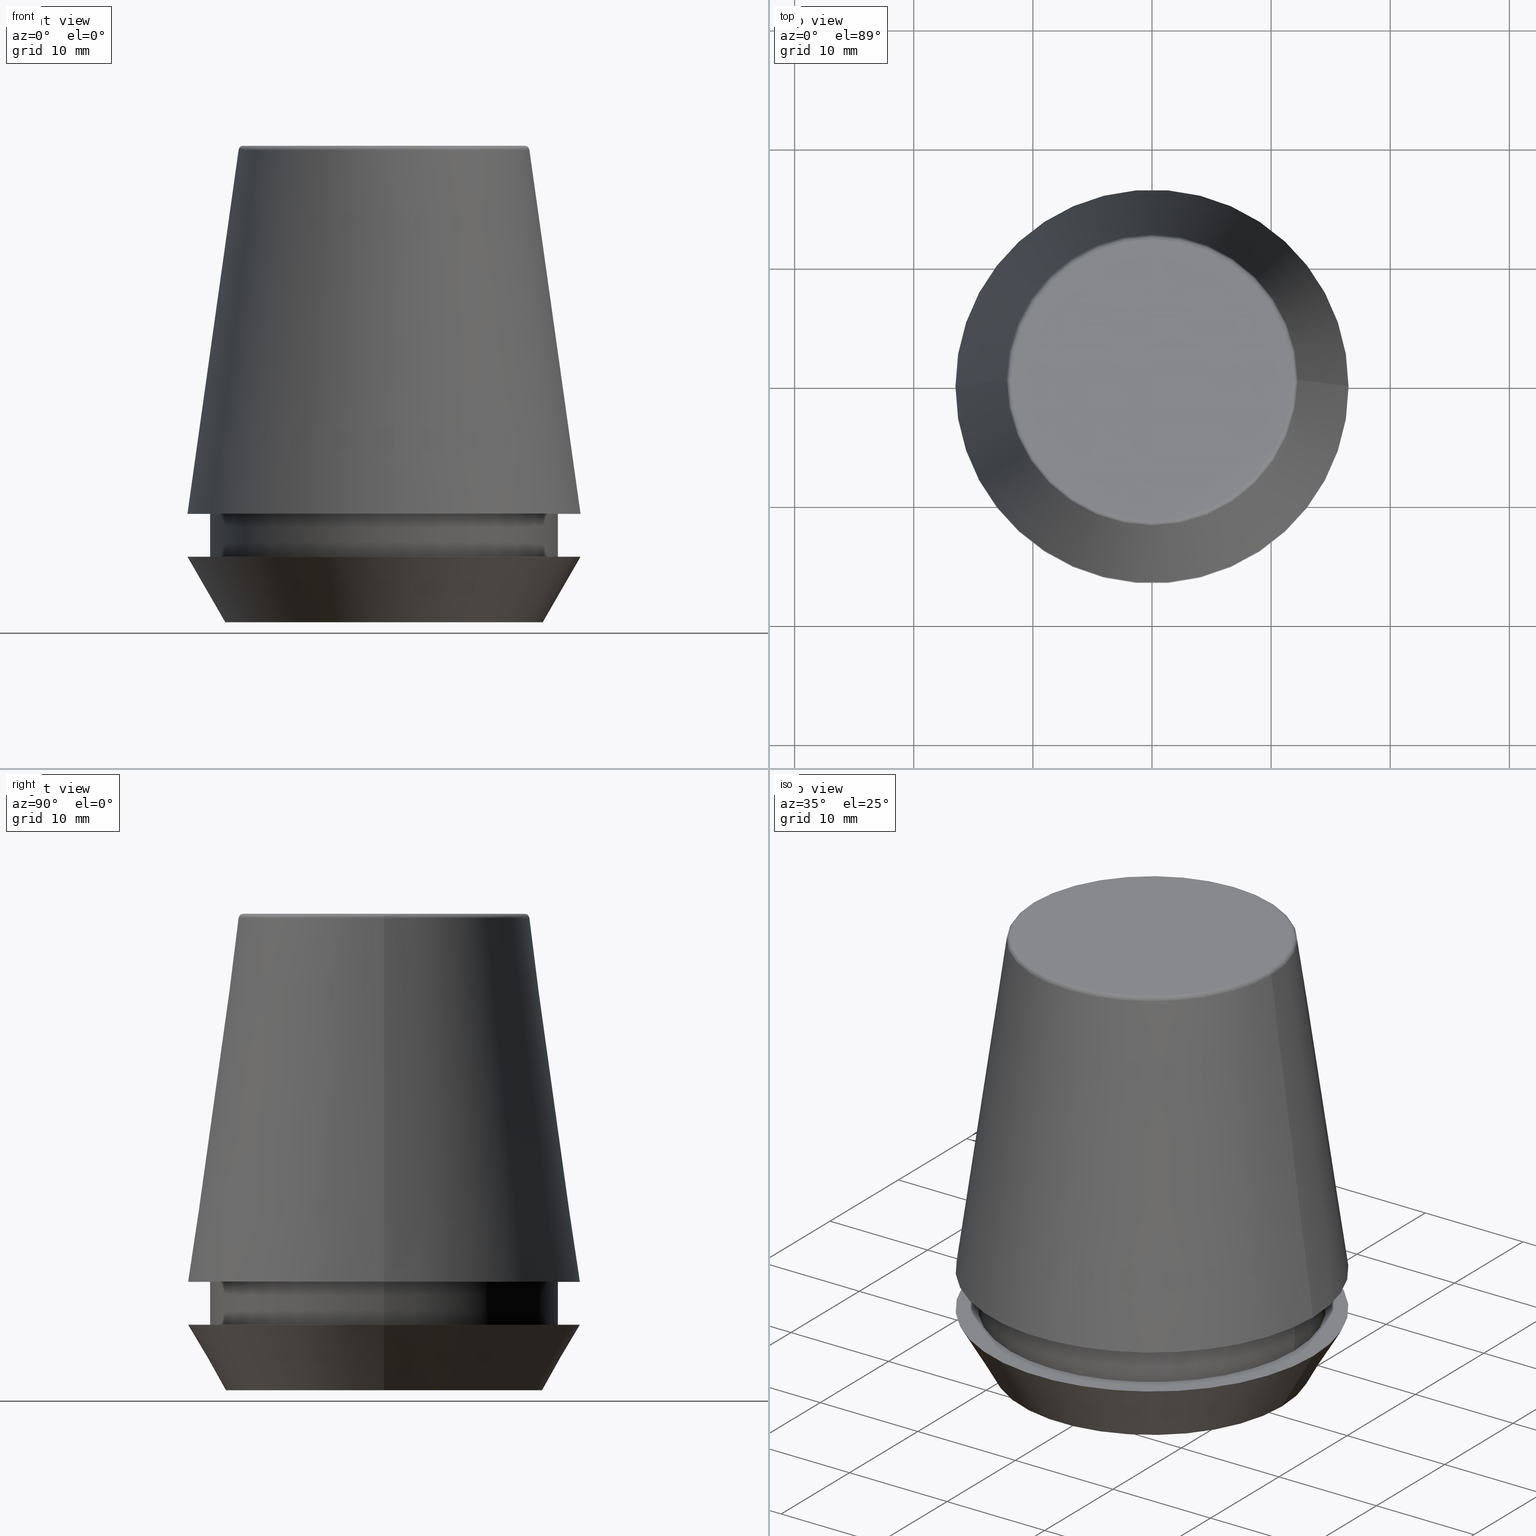
[diagram: canonical four-view strip — front | top / right | iso, engineering-drawing reading convention]
A machine part, canonical four-view strip (front | top / right | iso — engineering-drawing reading convention). The complete STEP part file that produces these views, byte-faithful:
ISO-10303-21;
HEADER;
FILE_DESCRIPTION (( 'STEP AP203' ),
    '1' );
FILE_NAME ('TAP COLLET ER 32G  18.0 X 14.5.STEP',
    '2019-04-09T11:41:04',
    ( '' ),
    ( '' ),
    'SwSTEP 2.0',
    'SolidWorks 2014',
    '' );
FILE_SCHEMA (( 'CONFIG_CONTROL_DESIGN' ));
ENDSEC;

DATA;
#1 = LINE ( 'NONE', #365, #180 ) ;
#2 = PLANE ( 'NONE',  #130 ) ;
#3 = EDGE_CURVE ( 'NONE', #273, #267, #1, .T. ) ;
#4 = LINE ( 'NONE', #327, #81 ) ;
#5 = SHAPE_DEFINITION_REPRESENTATION ( #386, #309 ) ;
#6 = FACE_BOUND ( 'NONE', #258, .T. ) ;
#7 = PERSON ( 'UNSPECIFIED', 'UNSPECIFIED', 'UNSPECIFIED', ('UNSPECIFIED'), ('UNSPECIFIED'), ('UNSPECIFIED') ) ;
#8 = DIRECTION ( 'NONE',  ( 0.0000000000000000000, 0.0000000000000000000, -1.000000000000000000 ) ) ;
#9 = EDGE_LOOP ( 'NONE', ( #186, #253, #125, #212 ) ) ;
#10 = EDGE_LOOP ( 'NONE', ( #100, #315 ) ) ;
#11 = APPROVAL_ROLE ( '' ) ;
#12 = AXIS2_PLACEMENT_3D ( 'NONE', #222, #170, #32 ) ;
#13 = CIRCLE ( 'NONE', #72, 11.80989888411031400 ) ;
#14 = CARTESIAN_POINT ( 'NONE',  ( 0.0000000000000000000, 0.0000000000000000000, 101.8074564848000400 ) ) ;
#15 = EDGE_CURVE ( 'NONE', #267, #265, #103, .T. ) ;
#16 = CIRCLE ( 'NONE', #240, 11.80989888411031400 ) ;
#17 = DIRECTION ( 'NONE',  ( 0.0000000000000000000, 0.0000000000000000000, 1.000000000000000000 ) ) ;
#18 = ORIENTED_EDGE ( 'NONE', *, *, #364, .F. ) ;
#19 = DIRECTION ( 'NONE',  ( 1.000000000000000000, 0.0000000000000000000, 0.0000000000000000000 ) ) ;
#20 = CALENDAR_DATE ( 2019, 9, 4 ) ;
#21 = CARTESIAN_POINT ( 'NONE',  ( 0.0000000000000000000, 0.0000000000000000000, 0.0000000000000000000 ) ) ;
#22 = CC_DESIGN_SECURITY_CLASSIFICATION ( #69, ( #277 ) ) ;
#23 = ORIENTED_EDGE ( 'NONE', *, *, #201, .F. ) ;
#24 = ORIENTED_EDGE ( 'NONE', *, *, #308, .F. ) ;
#25 = ADVANCED_FACE ( 'NONE', ( #244, #6 ), #235, .F. ) ;
#26 = CC_DESIGN_PERSON_AND_ORGANIZATION_ASSIGNMENT ( #232, #148, ( #161 ) ) ;
#27 = DIRECTION ( 'NONE',  ( -0.0000000000000000000, -0.0000000000000000000, 1.000000000000000000 ) ) ;
#28 = DIRECTION ( 'NONE',  ( -0.0000000000000000000, -0.0000000000000000000, 1.000000000000000000 ) ) ;
#29 = VERTEX_POINT ( 'NONE', #343 ) ;
#30 = ORIENTED_EDGE ( 'NONE', *, *, #228, .T. ) ;
#31 = AXIS2_PLACEMENT_3D ( 'NONE', #97, #112, #123 ) ;
#32 = DIRECTION ( 'NONE',  ( 1.000000000000000000, 0.0000000000000000000, 0.0000000000000000000 ) ) ;
#33 = AXIS2_PLACEMENT_3D ( 'NONE', #260, #187, #175 ) ;
#34 = DATE_AND_TIME ( #115, #196 ) ;
#35 = AXIS2_PLACEMENT_3D ( 'NONE', #286, #27, #92 ) ;
#36 = ORIENTED_EDGE ( 'NONE', *, *, #346, .T. ) ;
#37 = CLOSED_SHELL ( 'NONE', ( #108, #188, #146, #216, #303, #40, #379, #152, #285, #25, #131, #50 ) ) ;
#38 = ORIENTED_EDGE ( 'NONE', *, *, #236, .F. ) ;
#39 = CARTESIAN_POINT ( 'NONE',  ( -16.50032537154048700, 0.0000000000000000000, 9.099999999999997900 ) ) ;
#40 = ADVANCED_FACE ( 'NONE', ( #129 ), #299, .F. ) ;
#41 = MECHANICAL_CONTEXT ( 'NONE', #206, 'mechanical' ) ;
#42 = PERSON_AND_ORGANIZATION ( #7, #322 ) ;
#43 = CARTESIAN_POINT ( 'NONE',  ( 14.60000000000000000, 0.0000000000000000000, 101.8074564848000400 ) ) ;
#44 = ORIENTED_EDGE ( 'NONE', *, *, #15, .F. ) ;
#45 = ORIENTED_EDGE ( 'NONE', *, *, #364, .T. ) ;
#46 = CALENDAR_DATE ( 2019, 9, 4 ) ;
#47 = ORIENTED_EDGE ( 'NONE', *, *, #160, .T. ) ;
#48 = EDGE_LOOP ( 'NONE', ( #96, #128, #47, #373 ) ) ;
#49 = AXIS2_PLACEMENT_3D ( 'NONE', #256, #360, #74 ) ;
#50 = ADVANCED_FACE ( 'NONE', ( #357 ), #168, .T. ) ;
#51 = AXIS2_PLACEMENT_3D ( 'NONE', #279, #124, #305 ) ;
#52 = AXIS2_PLACEMENT_3D ( 'NONE', #169, #55, #289 ) ;
#53 = CONICAL_SURFACE ( 'NONE', #137, 16.50032537154048700, 0.1396263401595395900 ) ;
#54 = DIRECTION ( 'NONE',  ( -0.0000000000000000000, -0.0000000000000000000, 1.000000000000000000 ) ) ;
#55 = DIRECTION ( 'NONE',  ( -0.0000000000000000000, -0.0000000000000000000, 1.000000000000000000 ) ) ;
#56 = FACE_OUTER_BOUND ( 'NONE', #257, .T. ) ;
#57 = AXIS2_PLACEMENT_3D ( 'NONE', #145, #64, #245 ) ;
#58 = SECURITY_CLASSIFICATION_LEVEL ( 'unclassified' ) ;
#59 = ORIENTED_EDGE ( 'NONE', *, *, #308, .T. ) ;
#60 = AXIS2_PLACEMENT_3D ( 'NONE', #214, #76, #164 ) ;
#61 = DATE_AND_TIME ( #141, #220 ) ;
#62 = EDGE_CURVE ( 'NONE', #143, #265, #151, .T. ) ;
#63 = VECTOR ( 'NONE', #292, 1000.000000000000000 ) ;
#64 = DIRECTION ( 'NONE',  ( -0.0000000000000000000, -0.0000000000000000000, 1.000000000000000000 ) ) ;
#65 = FACE_OUTER_BOUND ( 'NONE', #264, .T. ) ;
#66 = APPROVAL_DATE_TIME ( #154, #358 ) ;
#67 = CARTESIAN_POINT ( 'NONE',  ( -14.60000000000000000, 1.787984326755135800E-015, 9.099999999999997900 ) ) ;
#68 = DIRECTION ( 'NONE',  ( 0.0000000000000000000, 0.0000000000000000000, -1.000000000000000000 ) ) ;
#69 = SECURITY_CLASSIFICATION ( '', '', #58 ) ;
#70 = AXIS2_PLACEMENT_3D ( 'NONE', #102, #239, #229 ) ;
#71 = DATE_TIME_ROLE ( 'creation_date' ) ;
#72 = AXIS2_PLACEMENT_3D ( 'NONE', #165, #110, #94 ) ;
#73 = APPROVAL_STATUS ( 'not_yet_approved' ) ;
#74 = DIRECTION ( 'NONE',  ( 1.000000000000000000, 0.0000000000000000000, 0.0000000000000000000 ) ) ;
#75 = PRODUCT_DEFINITION ( 'UNKNOWN', '', #277, #234 ) ;
#76 = DIRECTION ( 'NONE',  ( -0.0000000000000000000, -0.0000000000000000000, 1.000000000000000000 ) ) ;
#77 = FACE_OUTER_BOUND ( 'NONE', #247, .T. ) ;
#78 = PRODUCT_RELATED_PRODUCT_CATEGORY ( 'detail', '', ( #161 ) ) ;
#79 = APPROVAL_PERSON_ORGANIZATION ( #156, #358, #11 ) ;
#80 = AXIS2_PLACEMENT_3D ( 'NONE', #82, #142, #356 ) ;
#81 = VECTOR ( 'NONE', #378, 1000.000000000000000 ) ;
#82 = CARTESIAN_POINT ( 'NONE',  ( 0.0000000000000000000, 0.0000000000000000000, 0.0000000000000000000 ) ) ;
#83 = CC_DESIGN_PERSON_AND_ORGANIZATION_ASSIGNMENT ( #348, #302, ( #69 ) ) ;
#84 = ORIENTED_EDGE ( 'NONE', *, *, #236, .T. ) ;
#85 = AXIS2_PLACEMENT_3D ( 'NONE', #263, #139, #224 ) ;
#86 = LINE ( 'NONE', #204, #237 ) ;
#87 = AXIS2_PLACEMENT_3D ( 'NONE', #135, #68, #121 ) ;
#88 = CARTESIAN_POINT ( 'NONE',  ( 0.0000000000000000000, 0.0000000000000000000, 101.8074564848000400 ) ) ;
#89 = AXIS2_PLACEMENT_3D ( 'NONE', #88, #347, #191 ) ;
#90 = DIRECTION ( 'NONE',  ( 1.000000000000000000, 0.0000000000000000000, 0.0000000000000000000 ) ) ;
#91 = CIRCLE ( 'NONE', #51, 12.20600611160694300 ) ;
#92 = DIRECTION ( 'NONE',  ( 1.000000000000000000, 0.0000000000000000000, 0.0000000000000000000 ) ) ;
#93 = ORIENTED_EDGE ( 'NONE', *, *, #176, .F. ) ;
#94 = DIRECTION ( 'NONE',  ( 1.000000000000000000, 0.0000000000000000000, 0.0000000000000000000 ) ) ;
#95 = AXIS2_PLACEMENT_3D ( 'NONE', #225, #17, #363 ) ;
#96 = ORIENTED_EDGE ( 'NONE', *, *, #192, .F. ) ;
#97 = CARTESIAN_POINT ( 'NONE',  ( 0.0000000000000000000, 0.0000000000000000000, 0.0000000000000000000 ) ) ;
#98 = EDGE_CURVE ( 'NONE', #273, #143, #217, .T. ) ;
#99 = EDGE_CURVE ( 'NONE', #109, #194, #288, .T. ) ;
#100 = ORIENTED_EDGE ( 'NONE', *, *, #99, .F. ) ;
#101 = LINE ( 'NONE', #333, #369 ) ;
#102 = CARTESIAN_POINT ( 'NONE',  ( 0.0000000000000000000, 0.0000000000000000000, 9.099999999999997900 ) ) ;
#103 = CIRCLE ( 'NONE', #184, 14.60000000000000000 ) ;
#104 = CARTESIAN_POINT ( 'NONE',  ( 16.50032537154048700, 2.020707065114692300E-015, 9.099999999999997900 ) ) ;
#105 = ORIENTED_EDGE ( 'NONE', *, *, #98, .F. ) ;
#106 = LOCAL_TIME ( 17, 11, 4.000000000000000000, #185 ) ;
#107 = APPLICATION_PROTOCOL_DEFINITION ( 'international standard', 'config_control_design', 1994, #206 ) ;
#108 = ADVANCED_FACE ( 'NONE', ( #56 ), #136, .T. ) ;
#109 = VERTEX_POINT ( 'NONE', #207 ) ;
#110 = DIRECTION ( 'NONE',  ( -0.0000000000000000000, -0.0000000000000000000, 1.000000000000000000 ) ) ;
#111 =( LENGTH_UNIT ( ) NAMED_UNIT ( * ) SI_UNIT ( .MILLI., .METRE. ) );
#112 = DIRECTION ( 'NONE',  ( -0.0000000000000000000, -0.0000000000000000000, 1.000000000000000000 ) ) ;
#113 = VERTEX_POINT ( 'NONE', #104 ) ;
#114 = AXIS2_PLACEMENT_3D ( 'NONE', #138, #361, #306 ) ;
#115 = CALENDAR_DATE ( 2019, 9, 4 ) ;
#116 = AXIS2_PLACEMENT_3D ( 'NONE', #370, #150, #183 ) ;
#117 = EDGE_LOOP ( 'NONE', ( #255, #36 ) ) ;
#118 = DIRECTION ( 'NONE',  ( -0.0000000000000000000, -0.0000000000000000000, 1.000000000000000000 ) ) ;
#119 = ORIENTED_EDGE ( 'NONE', *, *, #3, .F. ) ;
#120 = APPROVAL_STATUS ( 'not_yet_approved' ) ;
#121 = DIRECTION ( 'NONE',  ( -1.000000000000000000, 0.0000000000000000000, -0.0000000000000000000 ) ) ;
#122 = CC_DESIGN_APPROVAL ( #340, ( #69 ) ) ;
#123 = DIRECTION ( 'NONE',  ( 1.000000000000000000, 0.0000000000000000000, 0.0000000000000000000 ) ) ;
#124 = DIRECTION ( 'NONE',  ( -0.0000000000000000000, -0.0000000000000000000, 1.000000000000000000 ) ) ;
#125 = ORIENTED_EDGE ( 'NONE', *, *, #231, .T. ) ;
#126 = EDGE_LOOP ( 'NONE', ( #18, #313, #30, #93 ) ) ;
#127 = LOCAL_TIME ( 17, 11, 4.000000000000000000, #210 ) ;
#128 = ORIENTED_EDGE ( 'NONE', *, *, #261, .T. ) ;
#129 = FACE_OUTER_BOUND ( 'NONE', #10, .T. ) ;
#130 = AXIS2_PLACEMENT_3D ( 'NONE', #338, #266, #332 ) ;
#131 = ADVANCED_FACE ( 'NONE', ( #173 ), #226, .T. ) ;
#132 = CIRCLE ( 'NONE', #329, 16.50000000000000000 ) ;
#133 = PLANE ( 'NONE',  #87 ) ;
#134 = AXIS2_PLACEMENT_3D ( 'NONE', #317, #230, #248 ) ;
#135 = CARTESIAN_POINT ( 'NONE',  ( 0.0000000000000000000, 11.80989888411031400, 40.00000000000000700 ) ) ;
#136 = TOROIDAL_SURFACE ( 'NONE', #85, 11.80989888411031400, 0.4000000000000026900 ) ;
#137 = AXIS2_PLACEMENT_3D ( 'NONE', #278, #8, #304 ) ;
#138 = CARTESIAN_POINT ( 'NONE',  ( 0.0000000000000000000, 0.0000000000000000000, 5.500000000000005300 ) ) ;
#139 = DIRECTION ( 'NONE',  ( -0.0000000000000000000, -0.0000000000000000000, 1.000000000000000000 ) ) ;
#140 = ORIENTED_EDGE ( 'NONE', *, *, #98, .T. ) ;
#141 = CALENDAR_DATE ( 2019, 9, 4 ) ;
#142 = DIRECTION ( 'NONE',  ( -0.0000000000000000000, -0.0000000000000000000, 1.000000000000000000 ) ) ;
#143 = VERTEX_POINT ( 'NONE', #381 ) ;
#144 = CC_DESIGN_PERSON_AND_ORGANIZATION_ASSIGNMENT ( #375, #345, ( #75 ) ) ;
#145 = CARTESIAN_POINT ( 'NONE',  ( 0.0000000000000000000, 0.0000000000000000000, 9.099999999999997900 ) ) ;
#146 = ADVANCED_FACE ( 'NONE', ( #77 ), #384, .T. ) ;
#147 =( NAMED_UNIT ( * ) PLANE_ANGLE_UNIT ( ) SI_UNIT ( $, .RADIAN. ) );
#148 = PERSON_AND_ORGANIZATION_ROLE ( 'design_owner' ) ;
#149 = DIRECTION ( 'NONE',  ( 1.000000000000000000, 0.0000000000000000000, 0.0000000000000000000 ) ) ;
#150 = DIRECTION ( 'NONE',  ( 1.224646799147353200E-016, 1.000000000000000000, 0.0000000000000000000 ) ) ;
#151 = LINE ( 'NONE', #43, #63 ) ;
#152 = ADVANCED_FACE ( 'NONE', ( #297, #153 ), #2, .F. ) ;
#153 = FACE_OUTER_BOUND ( 'NONE', #376, .T. ) ;
#154 = DATE_AND_TIME ( #227, #298 ) ;
#155 = DIRECTION ( 'NONE',  ( 1.000000000000000000, 0.0000000000000000000, 0.0000000000000000000 ) ) ;
#156 = PERSON_AND_ORGANIZATION ( #7, #322 ) ;
#157 = CARTESIAN_POINT ( 'NONE',  ( 16.50032537154048700, 2.020707065114692300E-015, 9.099999999999997900 ) ) ;
#158 = VECTOR ( 'NONE', #339, 1000.000000000000000 ) ;
#159 = CARTESIAN_POINT ( 'NONE',  ( 0.0000000000000000000, 0.0000000000000000000, 9.099999999999997900 ) ) ;
#160 = EDGE_CURVE ( 'NONE', #221, #331, #374, .T. ) ;
#161 = PRODUCT ( 'TAP COLLET ER 32G  18.0 X 14.5', 'TAP COLLET ER 32G  18.0 X 14.5', '', ( #41 ) ) ;
#162 = VERTEX_POINT ( 'NONE', #203 ) ;
#163 = DIRECTION ( 'NONE',  ( -0.0000000000000000000, -0.0000000000000000000, 1.000000000000000000 ) ) ;
#164 = DIRECTION ( 'NONE',  ( 1.000000000000000000, 0.0000000000000000000, 0.0000000000000000000 ) ) ;
#165 = CARTESIAN_POINT ( 'NONE',  ( 0.0000000000000000000, 0.0000000000000000000, 40.00000000000000700 ) ) ;
#166 = EDGE_CURVE ( 'NONE', #331, #382, #13, .T. ) ;
#167 = CYLINDRICAL_SURFACE ( 'NONE', #293, 14.60000000000000000 ) ;
#168 = TOROIDAL_SURFACE ( 'NONE', #52, 11.80989888411031400, 0.4000000000000026900 ) ;
#169 = CARTESIAN_POINT ( 'NONE',  ( 0.0000000000000000000, 0.0000000000000000000, 39.60000000000000100 ) ) ;
#170 = DIRECTION ( 'NONE',  ( -0.0000000000000000000, -0.0000000000000000000, 1.000000000000000000 ) ) ;
#171 = ORIENTED_EDGE ( 'NONE', *, *, #295, .F. ) ;
#172 = ORIENTED_EDGE ( 'NONE', *, *, #231, .F. ) ;
#173 = FACE_OUTER_BOUND ( 'NONE', #9, .T. ) ;
#174 = CC_DESIGN_DATE_AND_TIME_ASSIGNMENT ( #61, #71, ( #75 ) ) ;
#175 = DIRECTION ( 'NONE',  ( 1.000000000000000000, 0.0000000000000000000, 0.0000000000000000000 ) ) ;
#176 = EDGE_CURVE ( 'NONE', #162, #350, #290, .T. ) ;
#177 = AXIS2_PLACEMENT_3D ( 'NONE', #281, #28, #181 ) ;
#178 = ORIENTED_EDGE ( 'NONE', *, *, #15, .T. ) ;
#179 = APPROVAL_STATUS ( 'not_yet_approved' ) ;
#180 = VECTOR ( 'NONE', #372, 1000.000000000000000 ) ;
#181 = DIRECTION ( 'NONE',  ( 1.000000000000000000, 0.0000000000000000000, 0.0000000000000000000 ) ) ;
#182 = EDGE_LOOP ( 'NONE', ( #353, #105 ) ) ;
#183 = DIRECTION ( 'NONE',  ( -1.000000000000000000, 1.224646799147352500E-016, 0.0000000000000000000 ) ) ;
#184 = AXIS2_PLACEMENT_3D ( 'NONE', #287, #383, #294 ) ;
#185 = COORDINATED_UNIVERSAL_TIME_OFFSET ( 5, 30, .AHEAD. ) ;
#186 = ORIENTED_EDGE ( 'NONE', *, *, #254, .F. ) ;
#187 = DIRECTION ( 'NONE',  ( 0.0000000000000000000, -0.0000000000000000000, 1.000000000000000000 ) ) ;
#188 = ADVANCED_FACE ( 'NONE', ( #65 ), #53, .T. ) ;
#189 = ORIENTED_EDGE ( 'NONE', *, *, #62, .F. ) ;
#190 = PERSON_AND_ORGANIZATION_ROLE ( 'creator' ) ;
#191 = DIRECTION ( 'NONE',  ( 1.000000000000000000, 0.0000000000000000000, 0.0000000000000000000 ) ) ;
#192 = EDGE_CURVE ( 'NONE', #29, #382, #359, .T. ) ;
#193 = CARTESIAN_POINT ( 'NONE',  ( 11.80989888411031400, 0.0000000000000000000, 39.60000000000000100 ) ) ;
#194 = VERTEX_POINT ( 'NONE', #335 ) ;
#195 = CARTESIAN_POINT ( 'NONE',  ( 0.0000000000000000000, 0.0000000000000000000, 40.00000000000000700 ) ) ;
#196 = LOCAL_TIME ( 17, 11, 4.000000000000000000, #269 ) ;
#197 = EDGE_CURVE ( 'NONE', #194, #109, #213, .T. ) ;
#198 = AXIS2_PLACEMENT_3D ( 'NONE', #159, #118, #380 ) ;
#199 = PERSON_AND_ORGANIZATION ( #7, #322 ) ;
#200 = EDGE_LOOP ( 'NONE', ( #171, #352 ) ) ;
#201 = EDGE_CURVE ( 'NONE', #350, #162, #132, .T. ) ;
#202 = CARTESIAN_POINT ( 'NONE',  ( 14.60000000000000000, 0.0000000000000000000, 9.099999999999997900 ) ) ;
#203 = CARTESIAN_POINT ( 'NONE',  ( -16.50000000000000000, 2.020667218593133100E-015, 5.500000000000005300 ) ) ;
#204 = CARTESIAN_POINT ( 'NONE',  ( 13.32457351945710200, 0.0000000000000000000, 0.0000000000000000000 ) ) ;
#205 = LINE ( 'NONE', #157, #158 ) ;
#206 = APPLICATION_CONTEXT ( 'configuration controlled 3d designs of mechanical parts and assemblies' ) ;
#207 = CARTESIAN_POINT ( 'NONE',  ( 13.32457351945710200, 0.0000000000000000000, 0.0000000000000000000 ) ) ;
#208 = MANIFOLD_SOLID_BREP ( 'Revolve1', #37 ) ;
#209 = ORIENTED_EDGE ( 'NONE', *, *, #166, .F. ) ;
#210 = COORDINATED_UNIVERSAL_TIME_OFFSET ( 5, 30, .AHEAD. ) ;
#211 = ORIENTED_EDGE ( 'NONE', *, *, #62, .T. ) ;
#212 = ORIENTED_EDGE ( 'NONE', *, *, #295, .T. ) ;
#213 = CIRCLE ( 'NONE', #80, 13.32457351945710200 ) ;
#214 = CARTESIAN_POINT ( 'NONE',  ( 0.0000000000000000000, 0.0000000000000000000, 0.0000000000000000000 ) ) ;
#215 = EDGE_CURVE ( 'NONE', #113, #280, #284, .T. ) ;
#216 = ADVANCED_FACE ( 'NONE', ( #355 ), #307, .T. ) ;
#217 = CIRCLE ( 'NONE', #177, 14.60000000000000000 ) ;
#218 = DIRECTION ( 'NONE',  ( -0.0000000000000000000, -0.0000000000000000000, 1.000000000000000000 ) ) ;
#219 = EDGE_CURVE ( 'NONE', #143, #273, #367, .T. ) ;
#220 = LOCAL_TIME ( 17, 11, 4.000000000000000000, #291 ) ;
#221 = VERTEX_POINT ( 'NONE', #354 ) ;
#222 = CARTESIAN_POINT ( 'NONE',  ( 0.0000000000000000000, 0.0000000000000000000, 39.65566924038402900 ) ) ;
#223 = CC_DESIGN_PERSON_AND_ORGANIZATION_ASSIGNMENT ( #199, #190, ( #277 ) ) ;
#224 = DIRECTION ( 'NONE',  ( 1.000000000000000000, 0.0000000000000000000, 0.0000000000000000000 ) ) ;
#225 = CARTESIAN_POINT ( 'NONE',  ( 0.0000000000000000000, 0.0000000000000000000, 0.0000000000000000000 ) ) ;
#226 = CONICAL_SURFACE ( 'NONE', #134, 16.50032537154048700, 0.1396263401595395900 ) ;
#227 = CALENDAR_DATE ( 2019, 9, 4 ) ;
#228 = EDGE_CURVE ( 'NONE', #109, #350, #86, .T. ) ;
#229 = DIRECTION ( 'NONE',  ( 1.000000000000000000, 0.0000000000000000000, 0.0000000000000000000 ) ) ;
#230 = DIRECTION ( 'NONE',  ( 0.0000000000000000000, 0.0000000000000000000, -1.000000000000000000 ) ) ;
#231 = EDGE_CURVE ( 'NONE', #29, #280, #4, .T. ) ;
#232 = PERSON_AND_ORGANIZATION ( #7, #322 ) ;
#233 = DIRECTION ( 'NONE',  ( 0.0000000000000000000, -1.000000000000000000, 0.0000000000000000000 ) ) ;
#234 = DESIGN_CONTEXT ( 'detailed design', #242, 'design' ) ;
#235 = PLANE ( 'NONE',  #33 ) ;
#236 = EDGE_CURVE ( 'NONE', #265, #267, #301, .T. ) ;
#237 = VECTOR ( 'NONE', #268, 999.9999999999998900 ) ;
#238 = DIRECTION ( 'NONE',  ( 0.0000000000000000000, -0.0000000000000000000, 1.000000000000000000 ) ) ;
#239 = DIRECTION ( 'NONE',  ( -0.0000000000000000000, -0.0000000000000000000, 1.000000000000000000 ) ) ;
#240 = AXIS2_PLACEMENT_3D ( 'NONE', #195, #163, #90 ) ;
#241 = UNCERTAINTY_MEASURE_WITH_UNIT (LENGTH_MEASURE( 1.000000000000000100E-005 ), #111, 'distance_accuracy_value', 'NONE');
#242 = APPLICATION_CONTEXT ( 'configuration controlled 3d designs of mechanical parts and assemblies' ) ;
#243 = CIRCLE ( 'NONE', #198, 16.50032537154048700 ) ;
#244 = FACE_OUTER_BOUND ( 'NONE', #200, .T. ) ;
#245 = DIRECTION ( 'NONE',  ( 1.000000000000000000, 0.0000000000000000000, 0.0000000000000000000 ) ) ;
#246 = EDGE_LOOP ( 'NONE', ( #337, #45, #23, #321 ) ) ;
#247 = EDGE_LOOP ( 'NONE', ( #336, #314, #38, #189 ) ) ;
#248 = DIRECTION ( 'NONE',  ( -1.000000000000000000, 0.0000000000000000000, 0.0000000000000000000 ) ) ;
#249 = CONICAL_SURFACE ( 'NONE', #60, 13.32457351945710200, 0.5235987755982927100 ) ;
#250 = CARTESIAN_POINT ( 'NONE',  ( 16.50000000000000000, 0.0000000000000000000, 5.500000000000005300 ) ) ;
#251 = APPROVAL_DATE_TIME ( #324, #340 ) ;
#252 = APPROVAL ( #179, 'UNSPECIFIED' ) ;
#253 = ORIENTED_EDGE ( 'NONE', *, *, #261, .F. ) ;
#254 = EDGE_CURVE ( 'NONE', #221, #113, #205, .T. ) ;
#255 = ORIENTED_EDGE ( 'NONE', *, *, #166, .T. ) ;
#256 = CARTESIAN_POINT ( 'NONE',  ( 0.0000000000000000000, 0.0000000000000000000, 0.0000000000000000000 ) ) ;
#257 = EDGE_LOOP ( 'NONE', ( #59, #270, #209, #320 ) ) ;
#258 = EDGE_LOOP ( 'NONE', ( #84, #178 ) ) ;
#259 = CARTESIAN_POINT ( 'NONE',  ( 11.80989888411031400, 0.0000000000000000000, 40.00000000000000700 ) ) ;
#260 = CARTESIAN_POINT ( 'NONE',  ( 0.0000000000000000000, 16.50032537154048700, 9.099999999999999600 ) ) ;
#261 = EDGE_CURVE ( 'NONE', #29, #221, #387, .T. ) ;
#262 = APPROVAL_PERSON_ORGANIZATION ( #334, #340, #310 ) ;
#263 = CARTESIAN_POINT ( 'NONE',  ( 0.0000000000000000000, 0.0000000000000000000, 39.60000000000000100 ) ) ;
#264 = EDGE_LOOP ( 'NONE', ( #24, #272, #283, #172 ) ) ;
#265 = VERTEX_POINT ( 'NONE', #202 ) ;
#266 = DIRECTION ( 'NONE',  ( 0.0000000000000000000, 0.0000000000000000000, -1.000000000000000000 ) ) ;
#267 = VERTEX_POINT ( 'NONE', #67 ) ;
#268 = DIRECTION ( 'NONE',  ( 0.4999999999999947300, 0.0000000000000000000, 0.8660254037844418200 ) ) ;
#269 = COORDINATED_UNIVERSAL_TIME_OFFSET ( 5, 30, .AHEAD. ) ;
#270 = ORIENTED_EDGE ( 'NONE', *, *, #192, .T. ) ;
#271 = APPROVAL_DATE_TIME ( #351, #252 ) ;
#272 = ORIENTED_EDGE ( 'NONE', *, *, #254, .T. ) ;
#273 = VERTEX_POINT ( 'NONE', #323 ) ;
#274 = CC_DESIGN_APPROVAL ( #252, ( #277 ) ) ;
#275 = DATE_TIME_ROLE ( 'classification_date' ) ;
#276 = FACE_OUTER_BOUND ( 'NONE', #328, .T. ) ;
#277 = PRODUCT_DEFINITION_FORMATION_WITH_SPECIFIED_SOURCE ( 'ANY', '', #161, .NOT_KNOWN. ) ;
#278 = CARTESIAN_POINT ( 'NONE',  ( 0.0000000000000000000, 0.0000000000000000000, 9.099999999999997900 ) ) ;
#279 = CARTESIAN_POINT ( 'NONE',  ( 0.0000000000000000000, 0.0000000000000000000, 39.65566924038402900 ) ) ;
#280 = VERTEX_POINT ( 'NONE', #39 ) ;
#281 = CARTESIAN_POINT ( 'NONE',  ( 0.0000000000000000000, 0.0000000000000000000, 5.500000000000005300 ) ) ;
#282 = APPROVAL_PERSON_ORGANIZATION ( #362, #252, #341 ) ;
#283 = ORIENTED_EDGE ( 'NONE', *, *, #215, .T. ) ;
#284 = CIRCLE ( 'NONE', #57, 16.50032537154048700 ) ;
#285 = ADVANCED_FACE ( 'NONE', ( #276 ), #167, .T. ) ;
#286 = CARTESIAN_POINT ( 'NONE',  ( 0.0000000000000000000, 0.0000000000000000000, 5.500000000000005300 ) ) ;
#287 = CARTESIAN_POINT ( 'NONE',  ( 0.0000000000000000000, 0.0000000000000000000, 9.099999999999997900 ) ) ;
#288 = CIRCLE ( 'NONE', #49, 13.32457351945710200 ) ;
#289 = DIRECTION ( 'NONE',  ( 1.000000000000000000, 0.0000000000000000000, 0.0000000000000000000 ) ) ;
#290 = CIRCLE ( 'NONE', #114, 16.50000000000000000 ) ;
#291 = COORDINATED_UNIVERSAL_TIME_OFFSET ( 5, 30, .AHEAD. ) ;
#292 = DIRECTION ( 'NONE',  ( -0.0000000000000000000, -0.0000000000000000000, 1.000000000000000000 ) ) ;
#293 = AXIS2_PLACEMENT_3D ( 'NONE', #14, #218, #19 ) ;
#294 = DIRECTION ( 'NONE',  ( 1.000000000000000000, 0.0000000000000000000, 0.0000000000000000000 ) ) ;
#295 = EDGE_CURVE ( 'NONE', #280, #113, #243, .T. ) ;
#296 =( GEOMETRIC_REPRESENTATION_CONTEXT ( 3 ) GLOBAL_UNCERTAINTY_ASSIGNED_CONTEXT ( ( #241 ) ) GLOBAL_UNIT_ASSIGNED_CONTEXT ( ( #111, #147, #300 ) ) REPRESENTATION_CONTEXT ( 'NONE', 'WORKASPACE' ) );
#297 = FACE_BOUND ( 'NONE', #182, .T. ) ;
#298 = LOCAL_TIME ( 17, 11, 4.000000000000000000, #385 ) ;
#299 = PLANE ( 'NONE',  #377 ) ;
#300 =( NAMED_UNIT ( * ) SI_UNIT ( $, .STERADIAN. ) SOLID_ANGLE_UNIT ( ) );
#301 = CIRCLE ( 'NONE', #70, 14.60000000000000000 ) ;
#302 = PERSON_AND_ORGANIZATION_ROLE ( 'classification_officer' ) ;
#303 = ADVANCED_FACE ( 'NONE', ( #319 ), #133, .F. ) ;
#304 = DIRECTION ( 'NONE',  ( -1.000000000000000000, 0.0000000000000000000, 0.0000000000000000000 ) ) ;
#305 = DIRECTION ( 'NONE',  ( 1.000000000000000000, 0.0000000000000000000, 0.0000000000000000000 ) ) ;
#306 = DIRECTION ( 'NONE',  ( 1.000000000000000000, 0.0000000000000000000, 0.0000000000000000000 ) ) ;
#307 = CONICAL_SURFACE ( 'NONE', #31, 13.32457351945710200, 0.5235987755982927100 ) ;
#308 = EDGE_CURVE ( 'NONE', #221, #29, #91, .T. ) ;
#309 = ADVANCED_BREP_SHAPE_REPRESENTATION ( 'TAP COLLET ER 32G  18.0 X 14.5', ( #208, #95 ), #296 ) ;
#310 = APPROVAL_ROLE ( '' ) ;
#311 = FACE_OUTER_BOUND ( 'NONE', #126, .T. ) ;
#312 = CARTESIAN_POINT ( 'NONE',  ( 0.0000000000000000000, 0.0000000000000000000, 5.500000000000005300 ) ) ;
#313 = ORIENTED_EDGE ( 'NONE', *, *, #197, .T. ) ;
#314 = ORIENTED_EDGE ( 'NONE', *, *, #3, .T. ) ;
#315 = ORIENTED_EDGE ( 'NONE', *, *, #197, .F. ) ;
#316 = CC_DESIGN_APPROVAL ( #358, ( #75 ) ) ;
#317 = CARTESIAN_POINT ( 'NONE',  ( 0.0000000000000000000, 0.0000000000000000000, 9.099999999999997900 ) ) ;
#318 = DIRECTION ( 'NONE',  ( 0.0000000000000000000, 0.0000000000000000000, -1.000000000000000000 ) ) ;
#319 = FACE_OUTER_BOUND ( 'NONE', #117, .T. ) ;
#320 = ORIENTED_EDGE ( 'NONE', *, *, #160, .F. ) ;
#321 = ORIENTED_EDGE ( 'NONE', *, *, #228, .F. ) ;
#322 = ORGANIZATION ( 'UNSPECIFIED', 'UNSPECIFIED', '' ) ;
#323 = CARTESIAN_POINT ( 'NONE',  ( -14.60000000000000000, 1.787984326755135800E-015, 5.500000000000005300 ) ) ;
#324 = DATE_AND_TIME ( #20, #106 ) ;
#325 = ORIENTED_EDGE ( 'NONE', *, *, #201, .T. ) ;
#326 = CC_DESIGN_PERSON_AND_ORGANIZATION_ASSIGNMENT ( #42, #330, ( #277 ) ) ;
#327 = CARTESIAN_POINT ( 'NONE',  ( -16.50032537154048700, 0.0000000000000000000, 9.099999999999997900 ) ) ;
#328 = EDGE_LOOP ( 'NONE', ( #119, #140, #211, #44 ) ) ;
#329 = AXIS2_PLACEMENT_3D ( 'NONE', #312, #54, #149 ) ;
#330 = PERSON_AND_ORGANIZATION_ROLE ( 'design_supplier' ) ;
#331 = VERTEX_POINT ( 'NONE', #259 ) ;
#332 = DIRECTION ( 'NONE',  ( -1.000000000000000000, 0.0000000000000000000, -0.0000000000000000000 ) ) ;
#333 = CARTESIAN_POINT ( 'NONE',  ( -13.32457351945710200, 1.631789631060672300E-015, 0.0000000000000000000 ) ) ;
#334 = PERSON_AND_ORGANIZATION ( #7, #322 ) ;
#335 = CARTESIAN_POINT ( 'NONE',  ( -13.32457351945710200, 1.826228424826902600E-015, 0.0000000000000000000 ) ) ;
#336 = ORIENTED_EDGE ( 'NONE', *, *, #219, .T. ) ;
#337 = ORIENTED_EDGE ( 'NONE', *, *, #99, .T. ) ;
#338 = CARTESIAN_POINT ( 'NONE',  ( 0.0000000000000000000, 16.50000000000000000, 5.500000000000002700 ) ) ;
#339 = DIRECTION ( 'NONE',  ( 0.1391731009600586900, 1.704378926181473100E-017, -0.9902680687415712500 ) ) ;
#340 = APPROVAL ( #120, 'UNSPECIFIED' ) ;
#341 = APPROVAL_ROLE ( '' ) ;
#342 = CARTESIAN_POINT ( 'NONE',  ( -11.80989888411031400, 1.470550059081603400E-015, 40.00000000000000700 ) ) ;
#343 = CARTESIAN_POINT ( 'NONE',  ( -12.20600611160694300, 0.0000000000000000000, 39.65566924038402900 ) ) ;
#344 = CC_DESIGN_DATE_AND_TIME_ASSIGNMENT ( #34, #275, ( #69 ) ) ;
#345 = PERSON_AND_ORGANIZATION_ROLE ( 'creator' ) ;
#346 = EDGE_CURVE ( 'NONE', #382, #331, #16, .T. ) ;
#347 = DIRECTION ( 'NONE',  ( -0.0000000000000000000, -0.0000000000000000000, 1.000000000000000000 ) ) ;
#348 = PERSON_AND_ORGANIZATION ( #7, #322 ) ;
#349 = ORIENTED_EDGE ( 'NONE', *, *, #176, .T. ) ;
#350 = VERTEX_POINT ( 'NONE', #250 ) ;
#351 = DATE_AND_TIME ( #46, #127 ) ;
#352 = ORIENTED_EDGE ( 'NONE', *, *, #215, .F. ) ;
#353 = ORIENTED_EDGE ( 'NONE', *, *, #219, .F. ) ;
#354 = CARTESIAN_POINT ( 'NONE',  ( 12.20600611160694300, 1.757755848304969800E-015, 39.65566924038402900 ) ) ;
#355 = FACE_OUTER_BOUND ( 'NONE', #246, .T. ) ;
#356 = DIRECTION ( 'NONE',  ( 1.000000000000000000, 0.0000000000000000000, 0.0000000000000000000 ) ) ;
#357 = FACE_OUTER_BOUND ( 'NONE', #48, .T. ) ;
#358 = APPROVAL ( #73, 'UNSPECIFIED' ) ;
#359 = CIRCLE ( 'NONE', #116, 0.4000000000000028000 ) ;
#360 = DIRECTION ( 'NONE',  ( -0.0000000000000000000, -0.0000000000000000000, 1.000000000000000000 ) ) ;
#361 = DIRECTION ( 'NONE',  ( -0.0000000000000000000, -0.0000000000000000000, 1.000000000000000000 ) ) ;
#362 = PERSON_AND_ORGANIZATION ( #7, #322 ) ;
#363 = DIRECTION ( 'NONE',  ( 1.000000000000000000, 0.0000000000000000000, 0.0000000000000000000 ) ) ;
#364 = EDGE_CURVE ( 'NONE', #194, #162, #101, .T. ) ;
#365 = CARTESIAN_POINT ( 'NONE',  ( -14.60000000000000000, 1.787984326755135800E-015, 101.8074564848000400 ) ) ;
#366 = APPLICATION_PROTOCOL_DEFINITION ( 'international standard', 'config_control_design', 1994, #242 ) ;
#367 = CIRCLE ( 'NONE', #35, 14.60000000000000000 ) ;
#368 = AXIS2_PLACEMENT_3D ( 'NONE', #193, #233, #318 ) ;
#369 = VECTOR ( 'NONE', #371, 999.9999999999998900 ) ;
#370 = CARTESIAN_POINT ( 'NONE',  ( -11.80989888411031400, 1.446295486667959300E-015, 39.60000000000000100 ) ) ;
#371 = DIRECTION ( 'NONE',  ( -0.4999999999999947300, 6.123233995736700700E-017, 0.8660254037844418200 ) ) ;
#372 = DIRECTION ( 'NONE',  ( -0.0000000000000000000, -0.0000000000000000000, 1.000000000000000000 ) ) ;
#373 = ORIENTED_EDGE ( 'NONE', *, *, #346, .F. ) ;
#374 = CIRCLE ( 'NONE', #368, 0.4000000000000045200 ) ;
#375 = PERSON_AND_ORGANIZATION ( #7, #322 ) ;
#376 = EDGE_LOOP ( 'NONE', ( #325, #349 ) ) ;
#377 = AXIS2_PLACEMENT_3D ( 'NONE', #21, #238, #155 ) ;
#378 = DIRECTION ( 'NONE',  ( -0.1391731009600586900, 0.0000000000000000000, -0.9902680687415712500 ) ) ;
#379 = ADVANCED_FACE ( 'NONE', ( #311 ), #249, .T. ) ;
#380 = DIRECTION ( 'NONE',  ( 1.000000000000000000, 0.0000000000000000000, 0.0000000000000000000 ) ) ;
#381 = CARTESIAN_POINT ( 'NONE',  ( 14.60000000000000000, 0.0000000000000000000, 5.500000000000005300 ) ) ;
#382 = VERTEX_POINT ( 'NONE', #342 ) ;
#383 = DIRECTION ( 'NONE',  ( -0.0000000000000000000, -0.0000000000000000000, 1.000000000000000000 ) ) ;
#384 = CYLINDRICAL_SURFACE ( 'NONE', #89, 14.60000000000000000 ) ;
#385 = COORDINATED_UNIVERSAL_TIME_OFFSET ( 5, 30, .AHEAD. ) ;
#386 = PRODUCT_DEFINITION_SHAPE ( 'NONE', 'NONE',  #75 ) ;
#387 = CIRCLE ( 'NONE', #12, 12.20600611160694300 ) ;
ENDSEC;
END-ISO-10303-21;
